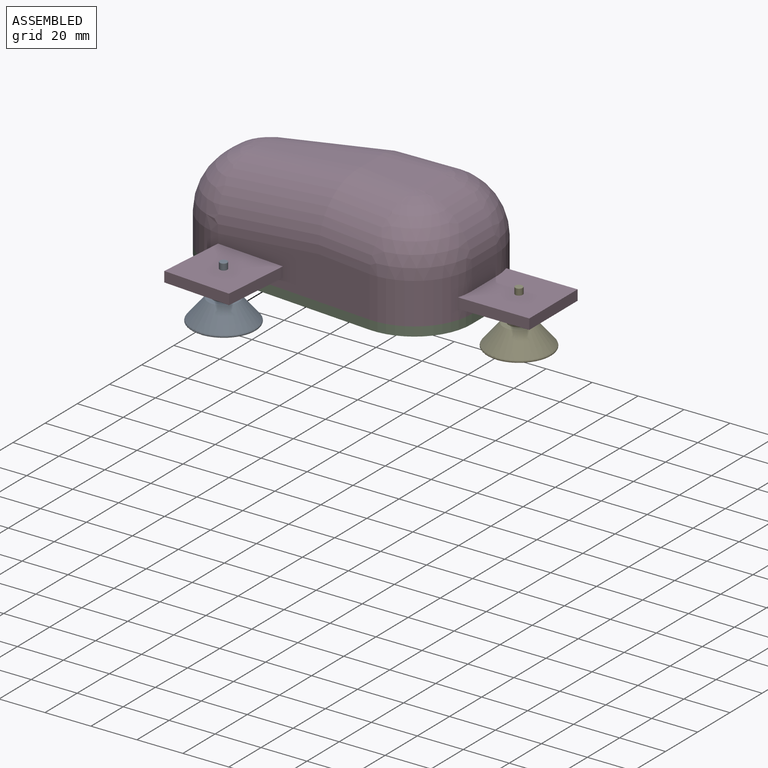
[diagram: assembled view]
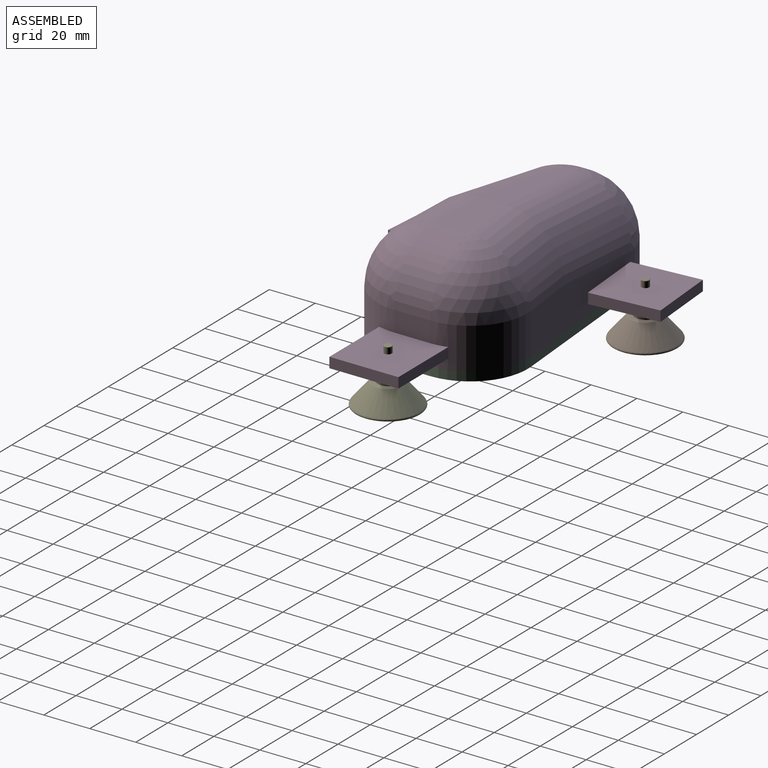
[diagram: assembled view, second angle]
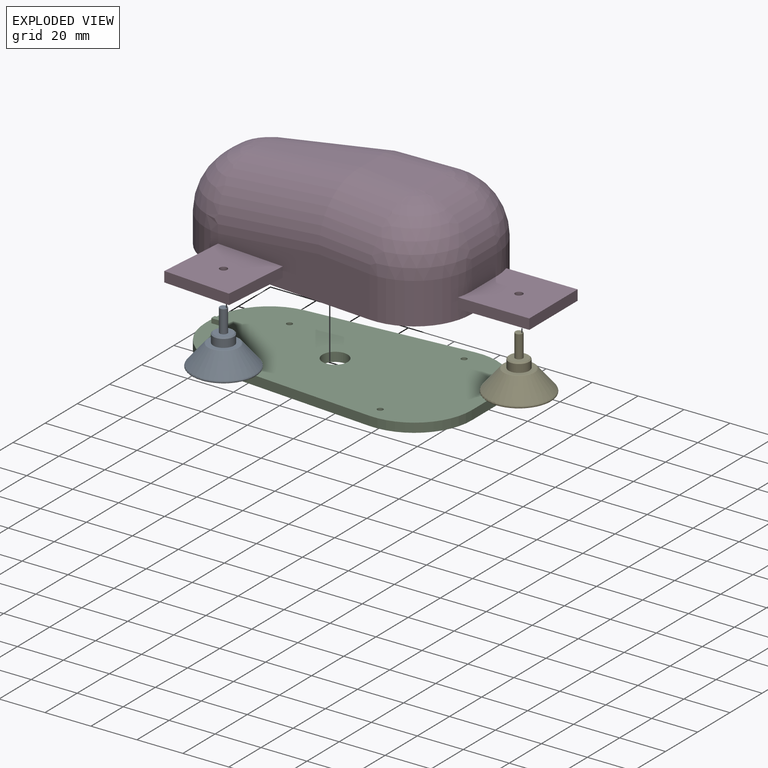
[diagram: exploded view]
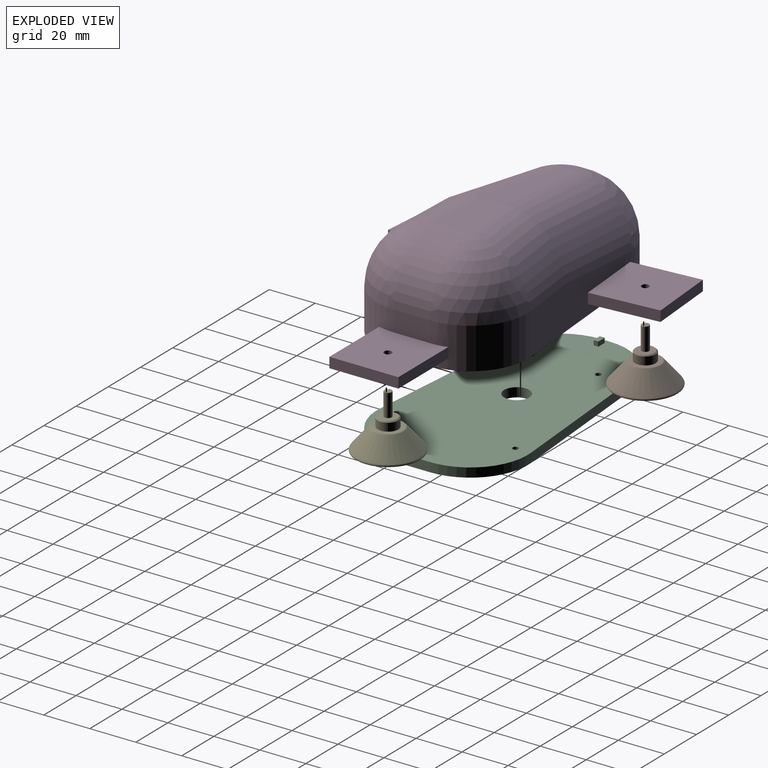
[diagram: exploded view, second angle]
ASSEMBLY  parts=5 mates=4
PART A: 13 faces, bbox 30.4x30.4x23.7 mm
  f0: cone r=15mm half-angle=40deg, axis (0,0,-1), area 708.9mm2, adj f4,f8
  f1: plane 12.82x12.82mm, normal (0,0,1), area 65.4mm2, adj f6,f8
  f2: cone r=0mm half-angle=59deg, axis (0,0,-1), area 499.3mm2, adj f3
  f3: cone r=1.65mm half-angle=45deg, axis (0,0,-1), area 166.4mm2, adj f2,f5
  f4: torus R=13.03mm, axis (0,0,-1), area 54.6mm2, adj f0,f5
  f5: torus R=13.53mm, axis (0,0,-1), area 104.6mm2, adj f3,f4
  f6: cylinder r=4.5mm len=9mm, axis (0,0,-1), area 99mm2, adj f1,f9
  f7: plane 8x8mm, normal (0,0,1), area 41.7mm2, adj f9,f10
  f8: cone r=6.41mm half-angle=65deg, axis (0,0,-1), area 15mm2, adj f0,f1
  f9: cone r=4mm half-angle=45deg, axis (0,0,-1), area 18.9mm2, adj f6,f7
  f10: cylinder r=1.65mm len=9.8mm, axis (0,0,-1), area 101.6mm2, adj f7,f12
  f11: plane 2.9x2.9mm, normal (0,0,1), area 6.6mm2, adj f12
  f12: torus R=1.45mm, axis (0,0,1), area 3.1mm2, adj f10,f11
PART B: same geometry as A
PART C: 28 faces, bbox 120x65.7x6 mm
  f0: plane 120x65.66mm, normal (0,0,-1), area 6531.4mm2, adj f1,f2,f3,f4,f5,f6,f7,f8
  f1: plane 4x3.99mm, normal (-1,0,0), area 16mm2, adj f0,f2,f8,f14
  f2: cylinder r=25mm len=24.91mm, axis (0,0,-1), area 148.8mm2, adj f0,f1,f3,f14
  f3: plane 70x5.83mm, normal (-0.08,-1,0), area 281mm2, adj f0,f2,f4,f14
  f4: cylinder r=25mm len=27.08mm, axis (0,0,-1), area 165.4mm2, adj f0,f3,f5,f14
  f5: plane 15.66x4mm, normal (1,0,0), area 62.6mm2, adj f0,f4,f6,f14
  f6: cylinder r=25mm len=27.08mm, axis (0,0,-1), area 165.4mm2, adj f0,f5,f7,f14
  f7: plane 70x5.83mm, normal (-0.08,1,0), area 281mm2, adj f0,f6,f8,f14
  f8: cylinder r=25mm len=24.91mm, axis (0,0,-1), area 148.8mm2, adj f0,f1,f7,f14
  f9: cylinder r=1.25mm len=2.5mm, axis (0,0,-1), area 15.7mm2, adj f0,f27
  f10: cylinder r=1.25mm len=2.5mm, axis (0,0,-1), area 15.7mm2, adj f0,f26
  f11: cylinder r=1.25mm len=2.5mm, axis (0,0,-1), area 15.7mm2, adj f0,f24
  f12: cylinder r=1.25mm len=2.5mm, axis (0,0,-1), area 15.7mm2, adj f0,f25
  f13: cylinder r=5.5mm len=11mm, axis (0,0,-1), area 138.2mm2, adj f0,f14
  f14: plane 120x65.66mm, normal (0,0,1), area 6427.1mm2, adj f1,f2,f3,f4,f5,f6,f7,f8
  f15: cylinder r=0.2mm len=2mm, axis (0,0,1), area 0.6mm2, adj f0,f16,f22,f23
  f16: plane 2x1.8mm, normal (-1,0,0), area 3.6mm2, adj f0,f15,f17,f23
  f17: cylinder r=0.2mm len=2mm, axis (0,0,1), area 0.6mm2, adj f0,f16,f18,f23
  f18: plane 3.6x2mm, normal (0,1,0), area 7.2mm2, adj f0,f17,f19,f23
  f19: cylinder r=0.2mm len=2mm, axis (0,0,1), area 0.6mm2, adj f0,f18,f20,f23
  f20: plane 2x1.8mm, normal (1,0,0), area 3.6mm2, adj f0,f19,f21,f23
  f21: cylinder r=0.2mm len=2mm, axis (0,0,1), area 0.6mm2, adj f0,f20,f22,f23
  f22: plane 3.6x2mm, normal (0,-1,0), area 7.2mm2, adj f0,f15,f21,f23
  f23: plane 4x2.2mm, normal (0,0,-1), area 8.8mm2, adj f15,f16,f17,f18,f19,f20,f21,f22
  f24: cone r=1.25mm half-angle=45deg, axis (0,0,1), area 40mm2, adj f11,f14
  f25: cone r=1.25mm half-angle=45deg, axis (0,0,1), area 40mm2, adj f12,f14
  f26: cone r=1.25mm half-angle=45deg, axis (0,0,1), area 40mm2, adj f10,f14
  f27: cone r=1.25mm half-angle=45deg, axis (0,0,1), area 40mm2, adj f9,f14
PART D: 74 faces, bbox 150x118.6x43.8 mm
  f0: plane 15.66x4.45mm, normal (1,0,0), area 69.7mm2, adj f4,f37,f43,f66
  f1: plane 15.66x8.94mm, normal (1,0,0), area 140mm2, adj f37,f43,f44,f68
  f2: plane 70x18.74mm, normal (-0.08,1,0), area 1035.9mm2, adj f4,f40,f43,f45,f47,f61,f62,f64
  f3: plane 70x18.74mm, normal (-0.08,-1,0), area 1035.9mm2, adj f4,f34,f35,f37,f38,f56,f57,f59
  f4: plane 120x65.66mm, normal (0,0,-1), area 4582.7mm2, adj f0,f2,f3,f5,f6,f7,f8,f9
  f5: plane 12.93x3.99mm, normal (-1,0,0), area 51.6mm2, adj f4,f34,f39,f40
  f6: plane 20x13.3mm, normal (1,0,0), area 266mm2, adj f4,f7,f29,f30
  f7: plane 20x10.5mm, normal (0,-1,0), area 210mm2, adj f4,f6,f8,f30
  f8: plane 20x1.93mm, normal (1,0,0), area 38.6mm2, adj f4,f7,f9,f30
  f9: cylinder r=4.1mm len=20mm, axis (0,0,-1), area 257.6mm2, adj f4,f8,f10,f30
  f10: plane 20x1.93mm, normal (-1,0,0), area 38.6mm2, adj f4,f9,f11,f30
  f11: plane 25.95x20mm, normal (0,-1,0), area 519mm2, adj f4,f10,f12,f30
  f12: plane 20x1.93mm, normal (1,0,0), area 38.6mm2, adj f4,f11,f13,f30
  f13: cylinder r=4.1mm len=20mm, axis (0,0,-1), area 257.6mm2, adj f4,f12,f14,f30
  f14: plane 20x1.93mm, normal (-1,0,0), area 38.6mm2, adj f4,f13,f15,f30
  f15: plane 20x10.5mm, normal (0,-1,0), area 210mm2, adj f4,f14,f16,f30
  f16: plane 29.2x20mm, normal (-1,0,0), area 584mm2, adj f4,f15,f17,f30
  f17: plane 20x10.5mm, normal (0,1,0), area 210mm2, adj f4,f16,f18,f30
  f18: plane 20x1.93mm, normal (-1,0,0), area 38.6mm2, adj f4,f17,f19,f30
  f19: cylinder r=4.1mm len=20mm, axis (0,0,-1), area 257.6mm2, adj f4,f18,f20,f30
  f20: plane 20x1.93mm, normal (1,0,0), area 38.6mm2, adj f4,f19,f21,f30
  f21: plane 25.95x20mm, normal (0,1,0), area 519mm2, adj f4,f20,f22,f30
  f22: plane 20x1.93mm, normal (-1,0,0), area 38.6mm2, adj f4,f21,f23,f30
  f23: cylinder r=4.1mm len=20mm, axis (0,0,-1), area 257.6mm2, adj f4,f22,f24,f30
  f24: plane 20x1.93mm, normal (1,0,0), area 38.6mm2, adj f4,f23,f25,f30
  f25: plane 20x10.5mm, normal (0,1,0), area 210mm2, adj f4,f24,f26,f30
  f26: plane 20x13.3mm, normal (1,0,0), area 266mm2, adj f4,f25,f27,f30
  f27: plane 20x13mm, normal (0,1,0), area 254.6mm2, adj f4,f26,f28,f30,f31
  f28: plane 15x2.6mm, normal (1,0,0), area 39mm2, adj f4,f27,f29,f31
  f29: plane 20x13mm, normal (0,-1,0), area 254.6mm2, adj f4,f6,f28,f30,f31
  f30: plane 71.35x41.26mm, normal (0,0,-1), area 2039.5mm2, adj f6,f7,f8,f9,f10,f11,f12,f13
  f31: cylinder r=5mm len=5mm, axis (0,1,0), area 20.4mm2, adj f27,f28,f29,f30
  f32: plane 48.49x12.08mm, normal (-0.12,0,0.99), area 392.6mm2, adj f33,f35,f38,f39,f45,f47
  f33: plane 25.52x15.66mm, normal (0.04,0,1), area 345.6mm2, adj f32,f38,f44,f47
  f34: cylinder r=25mm len=24.91mm, axis (0,0,1), area 480.9mm2, adj f3,f4,f5,f36,f58
  f35: cylinder r=25mm len=50.11mm, axis (-0.99,0.08,-0.12), area 1883.7mm2, adj f3,f32,f36,f38
  f36: sphere r=25mm, area 852.7mm2, adj f34,f35,f39
  f37: cylinder r=25mm len=27.08mm, axis (0,0,1), area 707mm2, adj f0,f1,f3,f4,f41,f66,f68,f69
  f38: cylinder r=25mm len=28.5mm, axis (1,-0.08,-0.04), area 979.1mm2, adj f3,f32,f33,f35,f41
  f39: cylinder r=25mm len=24.81mm, axis (0,-1,0), area 144.4mm2, adj f5,f32,f36,f42
  f40: cylinder r=25mm len=24.91mm, axis (0,0,1), area 480.9mm2, adj f2,f4,f5,f42,f63
  f41: sphere r=25mm, area 1011mm2, adj f37,f38,f44
  f42: sphere r=25mm, area 852.7mm2, adj f39,f40,f45
  f43: cylinder r=25mm len=27.08mm, axis (0,0,1), area 707mm2, adj f0,f1,f2,f4,f46,f66,f67,f68
  f44: cylinder r=25mm len=24.98mm, axis (0,-1,0), area 600.8mm2, adj f1,f33,f41,f46
  f45: cylinder r=25mm len=50.11mm, axis (0.99,0.08,0.12), area 1883.7mm2, adj f2,f32,f42,f47
  f46: sphere r=25mm, area 1011mm2, adj f43,f44,f47
  f47: cylinder r=25mm len=28.5mm, axis (-1,-0.08,0.04), area 979.1mm2, adj f2,f32,f33,f45,f46
  f48: cone r=0mm half-angle=59deg, axis (0,0,-1), area 5.7mm2, adj f49
  f49: cylinder r=1.25mm len=8mm, axis (0,0,-1), area 62.8mm2, adj f4,f48
  f50: cone r=0mm half-angle=59deg, axis (0,0,-1), area 5.7mm2, adj f51
  f51: cylinder r=1.25mm len=8mm, axis (0,0,-1), area 62.8mm2, adj f4,f50
  f52: cone r=0mm half-angle=59deg, axis (0,0,-1), area 5.7mm2, adj f53
  f53: cylinder r=1.25mm len=8mm, axis (0,0,-1), area 62.8mm2, adj f4,f52
  f54: cone r=0mm half-angle=59deg, axis (0,0,-1), area 5.7mm2, adj f55
  f55: cylinder r=1.25mm len=8mm, axis (0,0,-1), area 62.8mm2, adj f4,f54
  f56: plane 29.9x4.5mm, normal (1,-0.08,0), area 135mm2, adj f3,f57,f59,f60
  f57: plane 32.39x32.39mm, normal (0,0,1), area 891.4mm2, adj f3,f56,f58,f60,f71
  f58: plane 29.9x4.5mm, normal (-1,0.08,0), area 135mm2, adj f34,f57,f59,f60
  f59: plane 32.39x32.39mm, normal (0,0,-1), area 891.4mm2, adj f3,f56,f58,f60,f71
  f60: plane 29.9x4.5mm, normal (-0.08,-1,0), area 135mm2, adj f56,f57,f58,f59
  f61: plane 29.9x4.5mm, normal (1,0.08,0), area 135mm2, adj f2,f62,f64,f65
  f62: plane 32.39x32.39mm, normal (0,0,-1), area 891.4mm2, adj f2,f61,f63,f65,f73
  f63: plane 29.9x4.5mm, normal (-1,-0.08,0), area 135mm2, adj f40,f62,f64,f65
  f64: plane 32.39x32.39mm, normal (0,0,1), area 891.4mm2, adj f2,f61,f63,f65,f73
  f65: plane 29.9x4.5mm, normal (-0.08,1,0), area 135mm2, adj f61,f62,f63,f64
  f66: plane 31.05x30mm, normal (0,0,-1), area 896.4mm2, adj f0,f37,f43,f67,f69,f70,f72
  f67: plane 31.05x4.5mm, normal (0,1,0), area 139.7mm2, adj f43,f66,f68,f70
  f68: plane 31.05x30mm, normal (0,0,1), area 896.4mm2, adj f1,f37,f43,f67,f69,f70,f72
  f69: plane 31.05x4.5mm, normal (0,-1,0), area 139.7mm2, adj f37,f66,f68,f70
  f70: plane 30x4.5mm, normal (1,0,0), area 135mm2, adj f66,f67,f68,f69
  f71: cylinder r=1.65mm len=4.5mm, axis (0,0,1), area 46.7mm2, adj f57,f59
  f72: cylinder r=1.65mm len=4.5mm, axis (0,0,1), area 46.7mm2, adj f66,f68
  f73: cylinder r=1.65mm len=4.5mm, axis (0,0,1), area 46.7mm2, adj f62,f64
PART E: same geometry as A
PLACE A t=(69.66,54.3,18.44)mm
PLACE B t=(69.66,140.51,18.44)mm
PLACE C rot(axis=(1,0,0),180deg) t=(92.47,98.05,30.64)mm
PLACE D t=(93.03,97.4,30.64)mm
PLACE E t=(168.03,97.4,18.44)mm
MATE slider A.f2 <-> D.f71  axis (0,0,-1) through (69.66,54.3,37.34)mm
MATE fastened C.f9 <-> D.f48  axis (0,0,1) through (58.03,82.9,30.64)mm
MATE slider B.f2 <-> D.f73  axis (0,0,-1) through (69.66,140.51,37.34)mm
MATE slider E.f2 <-> D.f72  axis (0,0,-1) through (168.03,97.4,37.34)mm
